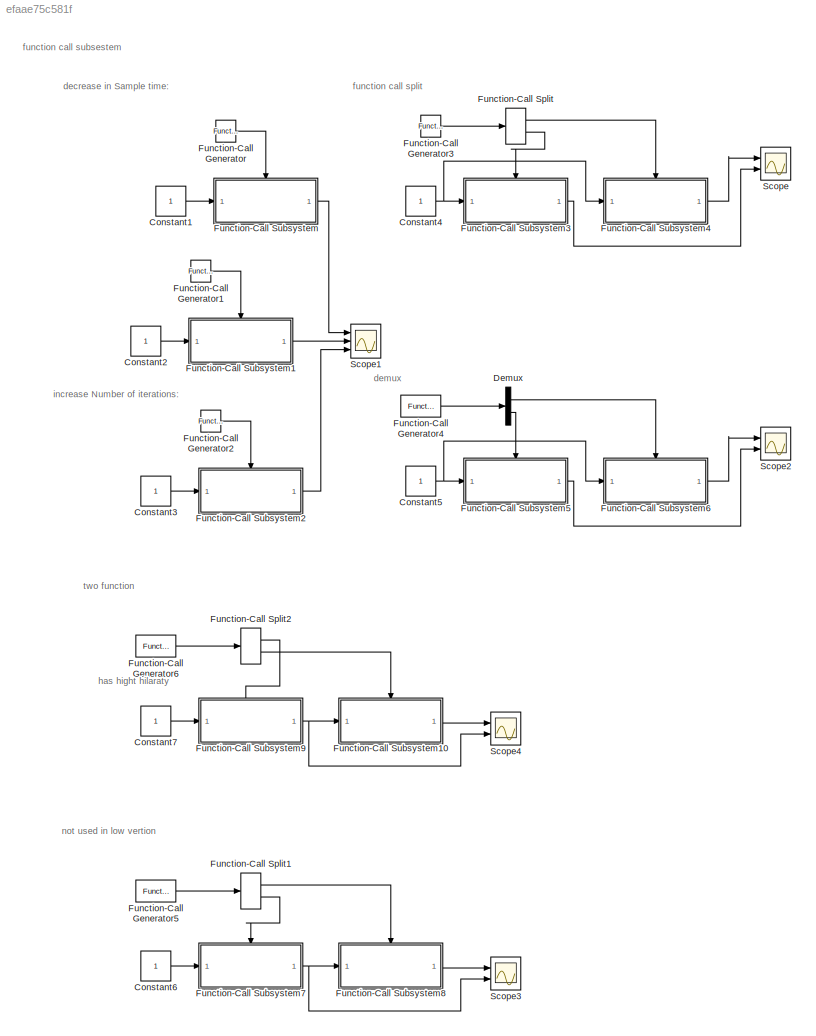
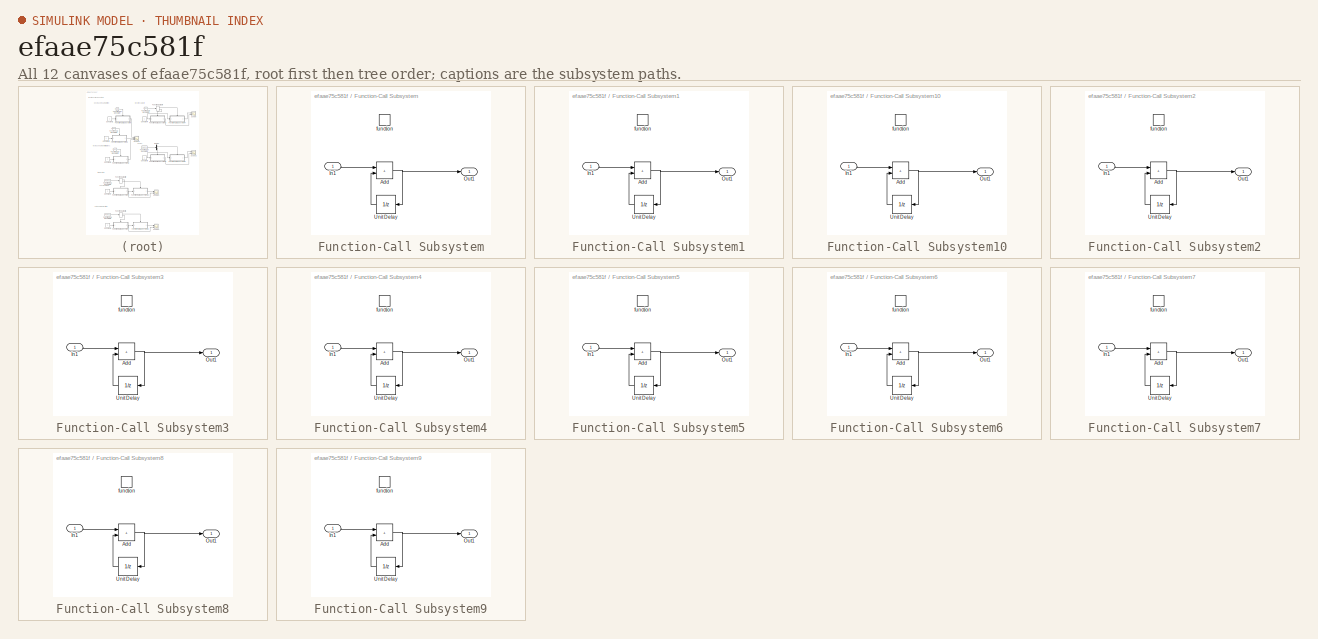
[diagram: thumbnail index - all 12 canvases of the model, root first then tree order]
MODEL slx_efaae75c581f
KIND model
CONFIG AbsTol = auto
CONFIG EnableMultiTasking = off
CONFIG FixedStep = 1e-3
CONFIG MaxStep = auto
CONFIG MinStep = auto
CONFIG RelTol = 1e-3
CONFIG SampleTimeConstraint = Unconstrained
CONFIG SolverName = FixedStepAuto
CONFIG StartTime = 0.0
CONFIG StopTime = 10.0
BLOCK [Constant] Constant1
BLOCK [Constant] Constant2
BLOCK [Constant] Constant3
BLOCK [Constant] Constant4
BLOCK [Constant] Constant5
BLOCK [Constant] Constant6
BLOCK [Constant] Constant7
BLOCK [Demux] Demux
  Outputs = 2
  Ports = [1, 2]
BLOCK [Reference] Function-Call Generator  REF=simulink/Ports &
Subsystems/Function-Call
Generator
  Ports = [0, 1]
  SourceBlock = simulink/Ports &\nSubsystems/Function-Call\nGenerator
  SourceProductBaseCode = SL
  SourceType = Function-Call Generator
BLOCK [Reference] Function-Call Generator1  REF=simulink/Ports &
Subsystems/Function-Call
Generator
  Ports = [0, 1]
  SourceBlock = simulink/Ports &\nSubsystems/Function-Call\nGenerator
  SourceProductBaseCode = SL
  SourceType = Function-Call Generator
BLOCK [Reference] Function-Call Generator2  REF=simulink/Ports &
Subsystems/Function-Call
Generator
  Ports = [0, 1]
  SourceBlock = simulink/Ports &\nSubsystems/Function-Call\nGenerator
  SourceProductBaseCode = SL
  SourceType = Function-Call Generator
BLOCK [Reference] Function-Call Generator3  REF=simulink/Ports &
Subsystems/Function-Call
Generator
  Ports = [0, 1]
  SourceBlock = simulink/Ports &\nSubsystems/Function-Call\nGenerator
  SourceProductBaseCode = SL
  SourceType = Function-Call Generator
BLOCK [Reference] Function-Call Generator4  REF=simulink/Ports &
Subsystems/Function-Call
Generator
  Ports = [0, 1]
  SourceBlock = simulink/Ports &\nSubsystems/Function-Call\nGenerator
  SourceProductBaseCode = SL
  SourceType = Function-Call Generator
BLOCK [Reference] Function-Call Generator5  REF=simulink/Ports &
Subsystems/Function-Call
Generator
  Ports = [0, 1]
  SourceBlock = simulink/Ports &\nSubsystems/Function-Call\nGenerator
  SourceProductBaseCode = SL
  SourceType = Function-Call Generator
BLOCK [Reference] Function-Call Generator6  REF=simulink/Ports &
Subsystems/Function-Call
Generator
  Ports = [0, 1]
  SourceBlock = simulink/Ports &\nSubsystems/Function-Call\nGenerator
  SourceProductBaseCode = SL
  SourceType = Function-Call Generator
BLOCK [FunctionCallSplit] Function-Call Split
  IconShape = distinctive
  NumOutputPorts = 2
  OutputPortLayout = default
  Ports = [1, 2]
BLOCK [FunctionCallSplit] Function-Call Split1
  IconShape = distinctive
  NumOutputPorts = 2
  OutputPortLayout = default
  Ports = [1, 2]
BLOCK [FunctionCallSplit] Function-Call Split2
  IconShape = distinctive
  NumOutputPorts = 2
  OutputPortLayout = default
  Ports = [1, 2]
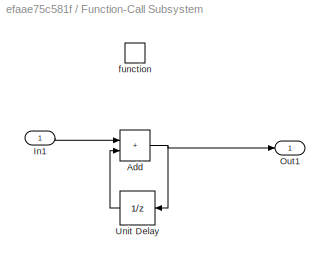
BLOCK [SubSystem] Function-Call Subsystem
  Ports = [1, 1, 0, 1]
  RequestExecContextInheritance = off
  TreatAsAtomicUnit = on
BLOCK [Sum] Function-Call Subsystem/Add
  IconShape = rectangular
  Ports = [2, 1]
BLOCK [Inport] Function-Call Subsystem/In1
BLOCK [Outport] Function-Call Subsystem/Out1
BLOCK [UnitDelay] Function-Call Subsystem/Unit Delay
  HasFrameUpgradeWarning = on
  NameLocation = top
  SampleTime = -1
BLOCK [TriggerPort] Function-Call Subsystem/function
  Ports = []
  StatesWhenEnabling = held
  TriggerType = function-call
  VariantControl = (inherit)
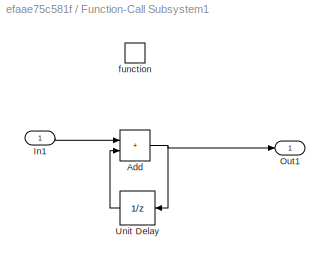
BLOCK [SubSystem] Function-Call Subsystem1
  Ports = [1, 1, 0, 1]
  RequestExecContextInheritance = off
  TreatAsAtomicUnit = on
BLOCK [Sum] Function-Call Subsystem1/Add
  IconShape = rectangular
  Ports = [2, 1]
BLOCK [Inport] Function-Call Subsystem1/In1
BLOCK [Outport] Function-Call Subsystem1/Out1
BLOCK [UnitDelay] Function-Call Subsystem1/Unit Delay
  HasFrameUpgradeWarning = on
  NameLocation = top
  SampleTime = -1
BLOCK [TriggerPort] Function-Call Subsystem1/function
  Ports = []
  StatesWhenEnabling = held
  TriggerType = function-call
  VariantControl = (inherit)
BLOCK [SubSystem] Function-Call Subsystem10
  Ports = [1, 1, 0, 1]
  RequestExecContextInheritance = off
  TreatAsAtomicUnit = on
BLOCK [Sum] Function-Call Subsystem10/Add
  IconShape = rectangular
  Ports = [2, 1]
BLOCK [Inport] Function-Call Subsystem10/In1
BLOCK [Outport] Function-Call Subsystem10/Out1
BLOCK [UnitDelay] Function-Call Subsystem10/Unit Delay
  HasFrameUpgradeWarning = on
  NameLocation = top
  SampleTime = -1
BLOCK [TriggerPort] Function-Call Subsystem10/function
  Ports = []
  StatesWhenEnabling = held
  TriggerType = function-call
  VariantControl = (inherit)
BLOCK [SubSystem] Function-Call Subsystem2
  Ports = [1, 1, 0, 1]
  RequestExecContextInheritance = off
  TreatAsAtomicUnit = on
BLOCK [Sum] Function-Call Subsystem2/Add
  IconShape = rectangular
  Ports = [2, 1]
BLOCK [Inport] Function-Call Subsystem2/In1
BLOCK [Outport] Function-Call Subsystem2/Out1
BLOCK [UnitDelay] Function-Call Subsystem2/Unit Delay
  HasFrameUpgradeWarning = on
  NameLocation = top
  SampleTime = -1
BLOCK [TriggerPort] Function-Call Subsystem2/function
  Ports = []
  StatesWhenEnabling = held
  TriggerType = function-call
  VariantControl = (inherit)
BLOCK [SubSystem] Function-Call Subsystem3
  Ports = [1, 1, 0, 1]
  RequestExecContextInheritance = off
  TreatAsAtomicUnit = on
BLOCK [Sum] Function-Call Subsystem3/Add
  IconShape = rectangular
  Ports = [2, 1]
BLOCK [Inport] Function-Call Subsystem3/In1
BLOCK [Outport] Function-Call Subsystem3/Out1
BLOCK [UnitDelay] Function-Call Subsystem3/Unit Delay
  HasFrameUpgradeWarning = on
  NameLocation = top
  SampleTime = -1
BLOCK [TriggerPort] Function-Call Subsystem3/function
  Ports = []
  StatesWhenEnabling = held
  TriggerType = function-call
  VariantControl = (inherit)
BLOCK [SubSystem] Function-Call Subsystem4
  Ports = [1, 1, 0, 1]
  RequestExecContextInheritance = off
  TreatAsAtomicUnit = on
BLOCK [Sum] Function-Call Subsystem4/Add
  IconShape = rectangular
  Ports = [2, 1]
BLOCK [Inport] Function-Call Subsystem4/In1
BLOCK [Outport] Function-Call Subsystem4/Out1
BLOCK [UnitDelay] Function-Call Subsystem4/Unit Delay
  HasFrameUpgradeWarning = on
  NameLocation = top
  SampleTime = -1
BLOCK [TriggerPort] Function-Call Subsystem4/function
  Ports = []
  StatesWhenEnabling = held
  TriggerType = function-call
  VariantControl = (inherit)
BLOCK [SubSystem] Function-Call Subsystem5
  Ports = [1, 1, 0, 1]
  RequestExecContextInheritance = off
  TreatAsAtomicUnit = on
BLOCK [Sum] Function-Call Subsystem5/Add
  IconShape = rectangular
  Ports = [2, 1]
BLOCK [Inport] Function-Call Subsystem5/In1
BLOCK [Outport] Function-Call Subsystem5/Out1
BLOCK [UnitDelay] Function-Call Subsystem5/Unit Delay
  HasFrameUpgradeWarning = on
  NameLocation = top
  SampleTime = -1
BLOCK [TriggerPort] Function-Call Subsystem5/function
  Ports = []
  StatesWhenEnabling = held
  TriggerType = function-call
  VariantControl = (inherit)
BLOCK [SubSystem] Function-Call Subsystem6
  Ports = [1, 1, 0, 1]
  RequestExecContextInheritance = off
  TreatAsAtomicUnit = on
BLOCK [Sum] Function-Call Subsystem6/Add
  IconShape = rectangular
  Ports = [2, 1]
BLOCK [Inport] Function-Call Subsystem6/In1
BLOCK [Outport] Function-Call Subsystem6/Out1
BLOCK [UnitDelay] Function-Call Subsystem6/Unit Delay
  HasFrameUpgradeWarning = on
  NameLocation = top
  SampleTime = -1
BLOCK [TriggerPort] Function-Call Subsystem6/function
  Ports = []
  StatesWhenEnabling = held
  TriggerType = function-call
  VariantControl = (inherit)
BLOCK [SubSystem] Function-Call Subsystem7
  Ports = [1, 1, 0, 1]
  RequestExecContextInheritance = off
  TreatAsAtomicUnit = on
BLOCK [Sum] Function-Call Subsystem7/Add
  IconShape = rectangular
  Ports = [2, 1]
BLOCK [Inport] Function-Call Subsystem7/In1
BLOCK [Outport] Function-Call Subsystem7/Out1
BLOCK [UnitDelay] Function-Call Subsystem7/Unit Delay
  HasFrameUpgradeWarning = on
  NameLocation = top
  SampleTime = -1
BLOCK [TriggerPort] Function-Call Subsystem7/function
  Ports = []
  StatesWhenEnabling = held
  TriggerType = function-call
  VariantControl = (inherit)
BLOCK [SubSystem] Function-Call Subsystem8
  Ports = [1, 1, 0, 1]
  RequestExecContextInheritance = off
  TreatAsAtomicUnit = on
BLOCK [Sum] Function-Call Subsystem8/Add
  IconShape = rectangular
  Ports = [2, 1]
BLOCK [Inport] Function-Call Subsystem8/In1
BLOCK [Outport] Function-Call Subsystem8/Out1
BLOCK [UnitDelay] Function-Call Subsystem8/Unit Delay
  HasFrameUpgradeWarning = on
  NameLocation = top
  SampleTime = -1
BLOCK [TriggerPort] Function-Call Subsystem8/function
  Ports = []
  StatesWhenEnabling = held
  TriggerType = function-call
  VariantControl = (inherit)
BLOCK [SubSystem] Function-Call Subsystem9
  Ports = [1, 1, 0, 1]
  RequestExecContextInheritance = off
  TreatAsAtomicUnit = on
BLOCK [Sum] Function-Call Subsystem9/Add
  IconShape = rectangular
  Ports = [2, 1]
BLOCK [Inport] Function-Call Subsystem9/In1
BLOCK [Outport] Function-Call Subsystem9/Out1
BLOCK [UnitDelay] Function-Call Subsystem9/Unit Delay
  HasFrameUpgradeWarning = on
  NameLocation = top
  SampleTime = -1
BLOCK [TriggerPort] Function-Call Subsystem9/function
  Ports = []
  StatesWhenEnabling = held
  TriggerType = function-call
  VariantControl = (inherit)
BLOCK [Scope] Scope
  Floating = off
  NumInputPorts = 2
  Ports = [2]
  ScopeSpecificationString = Simulink.scopes.TimeScopeBlockCfg('CurrentConfiguration', extmgr.ConfigurationSet(extmgr.Configuration('Core','General UI',true),extmgr.Configuration('Core','Source UI',true),extmgr.Configuration('Sources','WiredSimulink',true,'DataLoggingVariableName','ScopeData1'),extmgr.Configuration('Visuals','Time Domain',true,'SerializedDisplays',{struct('MinYLimReal','-0.75','MaxYLimReal','36.75','YLabelRea...<+2030ch>
BLOCK [Scope] Scope1
  Floating = off
  NumInputPorts = 3
  Ports = [3]
  ScopeSpecificationString = Simulink.scopes.TimeScopeBlockCfg('CurrentConfiguration', extmgr.ConfigurationSet(extmgr.Configuration('Core','General UI',true),extmgr.Configuration('Core','Source UI',true),extmgr.Configuration('Sources','WiredSimulink',true,'DataLoggingVariableName','ScopeData1'),extmgr.Configuration('Visuals','Time Domain',true,'SerializedDisplays',{struct('MinYLimReal','-11.5','MaxYLimReal','113.5','YLabelRea...<+2784ch>
BLOCK [Scope] Scope2
  Floating = off
  NumInputPorts = 2
  Ports = [2]
  ScopeSpecificationString = Simulink.scopes.TimeScopeBlockCfg('CurrentConfiguration', extmgr.ConfigurationSet(extmgr.Configuration('Core','General UI',true),extmgr.Configuration('Core','Source UI',true),extmgr.Configuration('Sources','WiredSimulink',true,'DataLoggingVariableName','ScopeData2'),extmgr.Configuration('Visuals','Time Domain',true,'SerializedDisplays',{struct('MinYLimReal','-0.75','MaxYLimReal','36.75','YLabelRea...<+2030ch>
BLOCK [Scope] Scope3
  Floating = off
  NumInputPorts = 2
  Ports = [2]
  ScopeSpecificationString = Simulink.scopes.TimeScopeBlockCfg('CurrentConfiguration', extmgr.ConfigurationSet(extmgr.Configuration('Core','General UI',true),extmgr.Configuration('Core','Source UI',true),extmgr.Configuration('Sources','WiredSimulink',true,'DataLoggingVariableName','ScopeData3'),extmgr.Configuration('Visuals','Time Domain',true,'SerializedDisplays',{struct('MinYLimReal','-61.875','MaxYLimReal','556.875','YLabe...<+2036ch>
BLOCK [Scope] Scope4
  Floating = off
  NumInputPorts = 2
  Ports = [2]
  ScopeSpecificationString = Simulink.scopes.TimeScopeBlockCfg('CurrentConfiguration', extmgr.ConfigurationSet(extmgr.Configuration('Core','General UI',true),extmgr.Configuration('Core','Source UI',true),extmgr.Configuration('Sources','WiredSimulink',true,'DataLoggingVariableName','ScopeData4'),extmgr.Configuration('Visuals','Time Domain',true,'SerializedDisplays',{struct('MinYLimReal','-61.875','MaxYLimReal','556.875','YLabe...<+2036ch>
ANNOTATION (root): decrease in Sample time:
ANNOTATION (root): demux
ANNOTATION (root): function call split
ANNOTATION (root): function call subsestem
ANNOTATION (root): has hight hilaraty
ANNOTATION (root): increase Number of iterations:
ANNOTATION (root): not used in low vertion
ANNOTATION (root): two function
LINE Constant1:1 -> Function-Call Subsystem:1
LINE Constant2:1 -> Function-Call Subsystem1:1
LINE Constant3:1 -> Function-Call Subsystem2:1
NET Constant4:1 -> Function-Call Subsystem3:1, Function-Call Subsystem4:1
NET Constant5:1 -> Function-Call Subsystem5:1, Function-Call Subsystem6:1
LINE Constant6:1 -> Function-Call Subsystem7:1
LINE Constant7:1 -> Function-Call Subsystem9:1
LINE Demux:1 -> Function-Call Subsystem6:trigger
LINE Demux:2 -> Function-Call Subsystem5:trigger
LINE Function-Call Generator1:1 -> Function-Call Subsystem1:trigger
LINE Function-Call Generator2:1 -> Function-Call Subsystem2:trigger
LINE Function-Call Generator3:1 -> Function-Call Split:1
LINE Function-Call Generator4:1 -> Demux:1
LINE Function-Call Generator5:1 -> Function-Call Split1:1
LINE Function-Call Generator6:1 -> Function-Call Split2:1
LINE Function-Call Generator:1 -> Function-Call Subsystem:trigger
LINE Function-Call Split1:1 -> Function-Call Subsystem8:trigger
LINE Function-Call Split1:2 -> Function-Call Subsystem7:trigger
LINE Function-Call Split2:1 -> Function-Call Subsystem9:trigger
LINE Function-Call Split2:2 -> Function-Call Subsystem10:trigger
LINE Function-Call Split:1 -> Function-Call Subsystem4:trigger
LINE Function-Call Split:2 -> Function-Call Subsystem3:trigger
NET Function-Call Subsystem/Add:1 -> Function-Call Subsystem/Out1:1, Function-Call Subsystem/Unit Delay:1
LINE Function-Call Subsystem/In1:1 -> Function-Call Subsystem/Add:1
LINE Function-Call Subsystem/Unit Delay:1 -> Function-Call Subsystem/Add:2
NET Function-Call Subsystem1/Add:1 -> Function-Call Subsystem1/Out1:1, Function-Call Subsystem1/Unit Delay:1
LINE Function-Call Subsystem1/In1:1 -> Function-Call Subsystem1/Add:1
LINE Function-Call Subsystem1/Unit Delay:1 -> Function-Call Subsystem1/Add:2
NET Function-Call Subsystem10/Add:1 -> Function-Call Subsystem10/Out1:1, Function-Call Subsystem10/Unit Delay:1
LINE Function-Call Subsystem10/In1:1 -> Function-Call Subsystem10/Add:1
LINE Function-Call Subsystem10/Unit Delay:1 -> Function-Call Subsystem10/Add:2
LINE Function-Call Subsystem10:1 -> Scope4:1
LINE Function-Call Subsystem1:1 -> Scope1:2
NET Function-Call Subsystem2/Add:1 -> Function-Call Subsystem2/Out1:1, Function-Call Subsystem2/Unit Delay:1
LINE Function-Call Subsystem2/In1:1 -> Function-Call Subsystem2/Add:1
LINE Function-Call Subsystem2/Unit Delay:1 -> Function-Call Subsystem2/Add:2
LINE Function-Call Subsystem2:1 -> Scope1:3
NET Function-Call Subsystem3/Add:1 -> Function-Call Subsystem3/Out1:1, Function-Call Subsystem3/Unit Delay:1
LINE Function-Call Subsystem3/In1:1 -> Function-Call Subsystem3/Add:1
LINE Function-Call Subsystem3/Unit Delay:1 -> Function-Call Subsystem3/Add:2
LINE Function-Call Subsystem3:1 -> Scope:2
NET Function-Call Subsystem4/Add:1 -> Function-Call Subsystem4/Out1:1, Function-Call Subsystem4/Unit Delay:1
LINE Function-Call Subsystem4/In1:1 -> Function-Call Subsystem4/Add:1
LINE Function-Call Subsystem4/Unit Delay:1 -> Function-Call Subsystem4/Add:2
LINE Function-Call Subsystem4:1 -> Scope:1
NET Function-Call Subsystem5/Add:1 -> Function-Call Subsystem5/Out1:1, Function-Call Subsystem5/Unit Delay:1
LINE Function-Call Subsystem5/In1:1 -> Function-Call Subsystem5/Add:1
LINE Function-Call Subsystem5/Unit Delay:1 -> Function-Call Subsystem5/Add:2
LINE Function-Call Subsystem5:1 -> Scope2:2
NET Function-Call Subsystem6/Add:1 -> Function-Call Subsystem6/Out1:1, Function-Call Subsystem6/Unit Delay:1
LINE Function-Call Subsystem6/In1:1 -> Function-Call Subsystem6/Add:1
LINE Function-Call Subsystem6/Unit Delay:1 -> Function-Call Subsystem6/Add:2
LINE Function-Call Subsystem6:1 -> Scope2:1
NET Function-Call Subsystem7/Add:1 -> Function-Call Subsystem7/Out1:1, Function-Call Subsystem7/Unit Delay:1
LINE Function-Call Subsystem7/In1:1 -> Function-Call Subsystem7/Add:1
LINE Function-Call Subsystem7/Unit Delay:1 -> Function-Call Subsystem7/Add:2
NET Function-Call Subsystem7:1 -> Function-Call Subsystem8:1, Scope3:2
NET Function-Call Subsystem8/Add:1 -> Function-Call Subsystem8/Out1:1, Function-Call Subsystem8/Unit Delay:1
LINE Function-Call Subsystem8/In1:1 -> Function-Call Subsystem8/Add:1
LINE Function-Call Subsystem8/Unit Delay:1 -> Function-Call Subsystem8/Add:2
LINE Function-Call Subsystem8:1 -> Scope3:1
NET Function-Call Subsystem9/Add:1 -> Function-Call Subsystem9/Out1:1, Function-Call Subsystem9/Unit Delay:1
LINE Function-Call Subsystem9/In1:1 -> Function-Call Subsystem9/Add:1
LINE Function-Call Subsystem9/Unit Delay:1 -> Function-Call Subsystem9/Add:2
NET Function-Call Subsystem9:1 -> Function-Call Subsystem10:1, Scope4:2
LINE Function-Call Subsystem:1 -> Scope1:1
note: NET lines group one-source signal fan-out (src -> all destinations, sorted); 1:1 wires keep LINE
